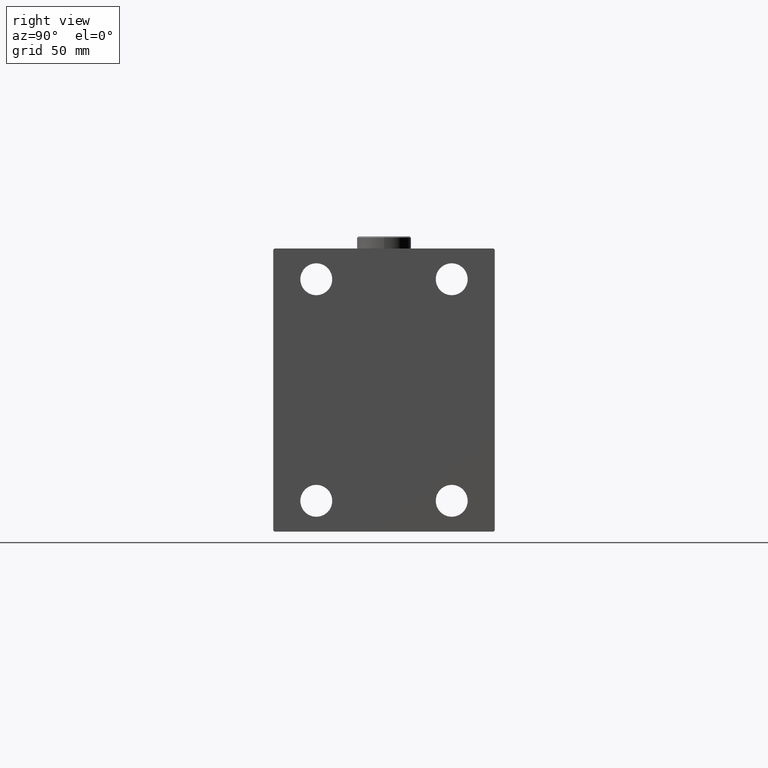
[diagram: clean part render]
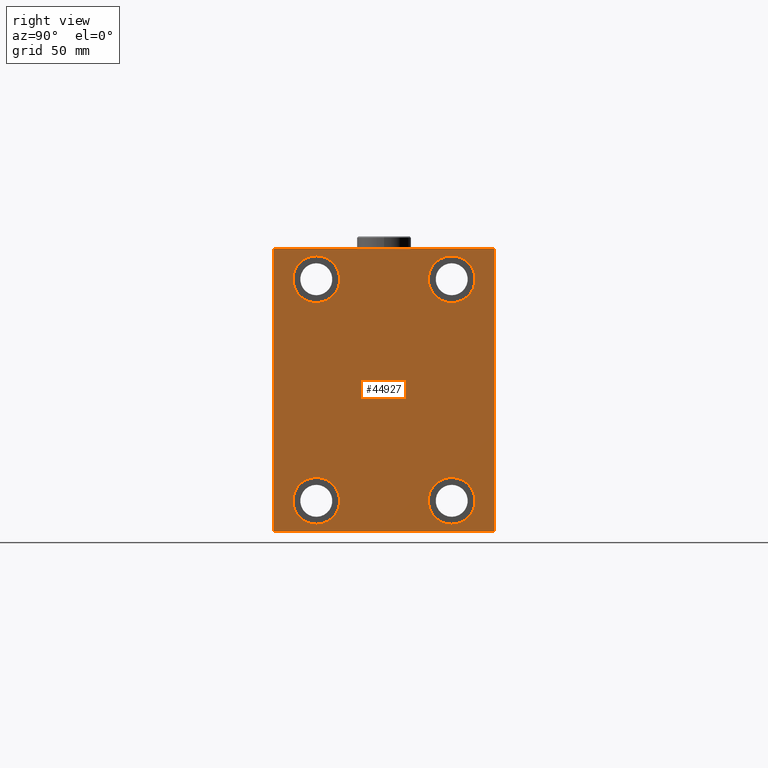
[diagram: same view with one face highlighted and labeled with its STEP entity id]
A machine part, right view. The second image highlights one B-rep face of the part: STEP entity #44927.
In plain terms, the highlighted planar face has unit normal (1, 0, 0).
Its self-contained STEP definition (entity closure, byte-faithful):
#467 = CARTESIAN_POINT ( 'NONE',  ( 198.0000000000000000, 44.50000000000002842, 57.50000000000000711 ) ) ;
#667 = FACE_BOUND ( 'NONE', #12752, .T. ) ;
#1434 = CARTESIAN_POINT ( 'NONE',  ( 198.0000000000000000, -44.50000000000002842, -57.50000000000000711 ) ) ;
#1632 = CARTESIAN_POINT ( 'NONE',  ( 198.0000000000000000, -27.49999999999998934, 45.00000000000000711 ) ) ;
#1986 = CARTESIAN_POINT ( 'NONE',  ( 198.0000000000000000, -27.49999999999998934, 35.50000000000000711 ) ) ;
#2152 = CARTESIAN_POINT ( 'NONE',  ( 198.0000000000000000, 27.49999999999998934, -54.49999999999998579 ) ) ;
#2874 = CARTESIAN_POINT ( 'NONE',  ( 198.0000000000000000, -27.49999999999998934, 54.50000000000000711 ) ) ;
#3671 = CARTESIAN_POINT ( 'NONE',  ( 198.0000000000000000, 45.00000000000001421, -57.50000000000000711 ) ) ;
#3679 = VERTEX_POINT ( 'NONE', #1986 ) ;
#4086 = CARTESIAN_POINT ( 'NONE',  ( 198.0000000000000000, -45.00000000000000000, 57.49999999999999289 ) ) ;
#4530 = EDGE_CURVE ( 'NONE', #25552, #6347, #25913, .T. ) ;
#4851 = DIRECTION ( 'NONE',  ( 0.000000000000000000, 0.000000000000000000, 1.000000000000000000 ) ) ;
#5118 = ORIENTED_EDGE ( 'NONE', *, *, #35734, .T. ) ;
#5307 = ORIENTED_EDGE ( 'NONE', *, *, #7631, .T. ) ;
#5344 = LINE ( 'NONE', #45516, #46970 ) ;
#5590 = ORIENTED_EDGE ( 'NONE', *, *, #8558, .T. ) ;
#5752 = ORIENTED_EDGE ( 'NONE', *, *, #25364, .T. ) ;
#5778 = VERTEX_POINT ( 'NONE', #21274 ) ;
#6121 = VERTEX_POINT ( 'NONE', #467 ) ;
#6310 = EDGE_CURVE ( 'NONE', #37689, #25552, #40841, .T. ) ;
#6347 = VERTEX_POINT ( 'NONE', #41563 ) ;
#6508 = CARTESIAN_POINT ( 'NONE',  ( 198.0000000000000000, -45.00000000000000000, 57.00000000000004974 ) ) ;
#7106 = CARTESIAN_POINT ( 'NONE',  ( 198.0000000000000000, 44.50000000000004263, -57.50000000000000711 ) ) ;
#7375 = DIRECTION ( 'NONE',  ( 0.000000000000000000, -1.000000000000000000, -1.541976423090495387E-16 ) ) ;
#7631 = EDGE_CURVE ( 'NONE', #41610, #3679, #43848, .T. ) ;
#7793 = FACE_OUTER_BOUND ( 'NONE', #20473, .T. ) ;
#8068 = AXIS2_PLACEMENT_3D ( 'NONE', #30339, #8973, #45338 ) ;
#8263 = FACE_BOUND ( 'NONE', #20044, .T. ) ;
#8304 = CARTESIAN_POINT ( 'NONE',  ( 198.0000000000000000, 27.50000000000001066, 54.50000000000000711 ) ) ;
#8524 = CARTESIAN_POINT ( 'NONE',  ( 198.0000000000000000, -50.99999999999877787, 51.00000000000160583 ) ) ;
#8558 = EDGE_CURVE ( 'NONE', #3679, #41610, #9306, .T. ) ;
#8812 = DIRECTION ( 'NONE',  ( -1.000000000000000000, -0.000000000000000000, -0.000000000000000000 ) ) ;
#8824 = CIRCLE ( 'NONE', #8068, 9.500000000000001776 ) ;
#8973 = DIRECTION ( 'NONE',  ( -1.000000000000000000, -0.000000000000000000, -0.000000000000000000 ) ) ;
#9306 = CIRCLE ( 'NONE', #17641, 9.500000000000001776 ) ;
#9838 = CARTESIAN_POINT ( 'NONE',  ( 198.0000000000000000, -27.49999999999998934, 45.00000000000000711 ) ) ;
#9968 = LINE ( 'NONE', #39193, #34873 ) ;
#10832 = ORIENTED_EDGE ( 'NONE', *, *, #4530, .T. ) ;
#12752 = EDGE_LOOP ( 'NONE', ( #32272, #5752 ) ) ;
#12875 = VERTEX_POINT ( 'NONE', #44682 ) ;
#13579 = EDGE_CURVE ( 'NONE', #24016, #22686, #42833, .T. ) ;
#13653 = DIRECTION ( 'NONE',  ( 0.000000000000000000, -1.206764157201257045E-16, 1.000000000000000000 ) ) ;
#14825 = CIRCLE ( 'NONE', #44444, 9.500000000000001776 ) ;
#14919 = DIRECTION ( 'NONE',  ( 0.000000000000000000, 0.000000000000000000, -1.000000000000000000 ) ) ;
#14928 = ORIENTED_EDGE ( 'NONE', *, *, #25061, .T. ) ;
#15374 = FACE_BOUND ( 'NONE', #42866, .T. ) ;
#15434 = LINE ( 'NONE', #40634, #19373 ) ;
#16112 = DIRECTION ( 'NONE',  ( -1.000000000000000000, -0.000000000000000000, -0.000000000000000000 ) ) ;
#16187 = EDGE_CURVE ( 'NONE', #46859, #5778, #21470, .T. ) ;
#16496 = DIRECTION ( 'NONE',  ( 0.000000000000000000, 0.000000000000000000, 1.000000000000000000 ) ) ;
#16529 = DIRECTION ( 'NONE',  ( -1.000000000000000000, -0.000000000000000000, -0.000000000000000000 ) ) ;
#16729 = DIRECTION ( 'NONE',  ( -1.000000000000000000, -0.000000000000000000, -0.000000000000000000 ) ) ;
#16736 = VERTEX_POINT ( 'NONE', #2152 ) ;
#16761 = CARTESIAN_POINT ( 'NONE',  ( 198.0000000000000000, 27.49999999999998934, -44.99999999999998579 ) ) ;
#17641 = AXIS2_PLACEMENT_3D ( 'NONE', #1632, #16112, #41794 ) ;
#17731 = ORIENTED_EDGE ( 'NONE', *, *, #28429, .T. ) ;
#18192 = ORIENTED_EDGE ( 'NONE', *, *, #42292, .T. ) ;
#19001 = DIRECTION ( 'NONE',  ( -0.000000000000000000, 0.7071067811865671127, -0.7071067811865279218 ) ) ;
#19093 = DIRECTION ( 'NONE',  ( -1.000000000000000000, -0.000000000000000000, -0.000000000000000000 ) ) ;
#19267 = CIRCLE ( 'NONE', #21560, 9.500000000000001776 ) ;
#19373 = VECTOR ( 'NONE', #19001, 1000.000000000000000 ) ;
#20044 = EDGE_LOOP ( 'NONE', ( #32574, #43830 ) ) ;
#20473 = EDGE_LOOP ( 'NONE', ( #14928, #40310, #10832, #36605, #17731, #24267, #42495, #5118 ) ) ;
#20577 = EDGE_CURVE ( 'NONE', #32222, #12875, #23112, .T. ) ;
#20916 = EDGE_CURVE ( 'NONE', #12875, #32222, #14825, .T. ) ;
#21274 = CARTESIAN_POINT ( 'NONE',  ( 198.0000000000000000, 45.00000000000000000, 57.00000000000003553 ) ) ;
#21470 = LINE ( 'NONE', #3671, #25394 ) ;
#21560 = AXIS2_PLACEMENT_3D ( 'NONE', #16761, #16529, #24123 ) ;
#21626 = AXIS2_PLACEMENT_3D ( 'NONE', #40806, #33909, #14919 ) ;
#22269 = CARTESIAN_POINT ( 'NONE',  ( 198.0000000000000000, 27.50000000000001066, 45.00000000000000711 ) ) ;
#22686 = VERTEX_POINT ( 'NONE', #8304 ) ;
#22995 = DIRECTION ( 'NONE',  ( 0.000000000000000000, -0.7071067811865671127, -0.7071067811865279218 ) ) ;
#23112 = CIRCLE ( 'NONE', #29200, 9.500000000000001776 ) ;
#23674 = VERTEX_POINT ( 'NONE', #7106 ) ;
#23983 = EDGE_CURVE ( 'NONE', #16736, #47007, #8824, .T. ) ;
#24016 = VERTEX_POINT ( 'NONE', #38919 ) ;
#24123 = DIRECTION ( 'NONE',  ( 0.000000000000000000, 0.000000000000000000, 1.000000000000000000 ) ) ;
#24267 = ORIENTED_EDGE ( 'NONE', *, *, #33310, .T. ) ;
#24445 = DIRECTION ( 'NONE',  ( -0.000000000000000000, -0.7071067811865671127, 0.7071067811865279218 ) ) ;
#25061 = EDGE_CURVE ( 'NONE', #6121, #37689, #37686, .T. ) ;
#25077 = CARTESIAN_POINT ( 'NONE',  ( 198.0000000000000000, 45.00000000000001421, -57.00000000000003553 ) ) ;
#25364 = EDGE_CURVE ( 'NONE', #22686, #24016, #37712, .T. ) ;
#25394 = VECTOR ( 'NONE', #13653, 1000.000000000000000 ) ;
#25552 = VERTEX_POINT ( 'NONE', #6508 ) ;
#25913 = LINE ( 'NONE', #4086, #42975 ) ;
#26902 = CARTESIAN_POINT ( 'NONE',  ( 198.0000000000000000, -27.50000000000000000, -44.99999999999998579 ) ) ;
#27412 = CARTESIAN_POINT ( 'NONE',  ( 198.0000000000000000, 27.49999999999998934, -35.49999999999998579 ) ) ;
#27859 = DIRECTION ( 'NONE',  ( 0.000000000000000000, 0.000000000000000000, 1.000000000000000000 ) ) ;
#28178 = EDGE_LOOP ( 'NONE', ( #5590, #5307 ) ) ;
#28429 = EDGE_CURVE ( 'NONE', #35661, #23674, #34662, .T. ) ;
#29200 = AXIS2_PLACEMENT_3D ( 'NONE', #26902, #31200, #27859 ) ;
#29860 = PLANE ( 'NONE',  #21626 ) ;
#30075 = CARTESIAN_POINT ( 'NONE',  ( 198.0000000000000000, 45.00000000000000000, 57.50000000000000711 ) ) ;
#30339 = CARTESIAN_POINT ( 'NONE',  ( 198.0000000000000000, 27.49999999999998934, -44.99999999999998579 ) ) ;
#31146 = DIRECTION ( 'NONE',  ( 0.000000000000000000, 0.000000000000000000, 1.000000000000000000 ) ) ;
#31200 = DIRECTION ( 'NONE',  ( -1.000000000000000000, -0.000000000000000000, -0.000000000000000000 ) ) ;
#31231 = DIRECTION ( 'NONE',  ( -0.000000000000000000, 0.7071067811865279218, 0.7071067811865671127 ) ) ;
#32137 = DIRECTION ( 'NONE',  ( 0.000000000000000000, 0.000000000000000000, -1.000000000000000000 ) ) ;
#32222 = VERTEX_POINT ( 'NONE', #45885 ) ;
#32272 = ORIENTED_EDGE ( 'NONE', *, *, #13579, .T. ) ;
#32574 = ORIENTED_EDGE ( 'NONE', *, *, #20916, .T. ) ;
#33310 = EDGE_CURVE ( 'NONE', #23674, #46859, #5344, .T. ) ;
#33448 = DIRECTION ( 'NONE',  ( 0.000000000000000000, 0.000000000000000000, 1.000000000000000000 ) ) ;
#33909 = DIRECTION ( 'NONE',  ( 1.000000000000000000, 0.000000000000000000, 0.000000000000000000 ) ) ;
#34662 = LINE ( 'NONE', #34901, #35525 ) ;
#34873 = VECTOR ( 'NONE', #24445, 1000.000000000000000 ) ;
#34901 = CARTESIAN_POINT ( 'NONE',  ( 198.0000000000000000, -45.00000000000000000, -57.50000000000000711 ) ) ;
#35525 = VECTOR ( 'NONE', #42738, 1000.000000000000000 ) ;
#35661 = VERTEX_POINT ( 'NONE', #1434 ) ;
#35734 = EDGE_CURVE ( 'NONE', #5778, #6121, #9968, .T. ) ;
#36185 = VECTOR ( 'NONE', #7375, 1000.000000000000000 ) ;
#36605 = ORIENTED_EDGE ( 'NONE', *, *, #45479, .T. ) ;
#36758 = FACE_BOUND ( 'NONE', #28178, .T. ) ;
#36966 = VECTOR ( 'NONE', #22995, 1000.000000000000000 ) ;
#37377 = CARTESIAN_POINT ( 'NONE',  ( 198.0000000000000000, 27.50000000000001066, 45.00000000000000711 ) ) ;
#37686 = LINE ( 'NONE', #30075, #36185 ) ;
#37689 = VERTEX_POINT ( 'NONE', #46593 ) ;
#37712 = CIRCLE ( 'NONE', #45342, 9.500000000000001776 ) ;
#38919 = CARTESIAN_POINT ( 'NONE',  ( 198.0000000000000000, 27.50000000000001066, 35.50000000000000711 ) ) ;
#39083 = ORIENTED_EDGE ( 'NONE', *, *, #23983, .T. ) ;
#39193 = CARTESIAN_POINT ( 'NONE',  ( 198.0000000000000000, 50.99999999999877787, 51.00000000000160583 ) ) ;
#39763 = AXIS2_PLACEMENT_3D ( 'NONE', #22269, #43936, #33448 ) ;
#40310 = ORIENTED_EDGE ( 'NONE', *, *, #6310, .T. ) ;
#40634 = CARTESIAN_POINT ( 'NONE',  ( 198.0000000000000000, -50.99999999999877787, -51.00000000000160583 ) ) ;
#40806 = CARTESIAN_POINT ( 'NONE',  ( 198.0000000000000000, 0.000000000000000000, 0.000000000000000000 ) ) ;
#40841 = LINE ( 'NONE', #8524, #36966 ) ;
#41358 = CARTESIAN_POINT ( 'NONE',  ( 198.0000000000000000, -27.50000000000000000, -44.99999999999998579 ) ) ;
#41563 = CARTESIAN_POINT ( 'NONE',  ( 198.0000000000000000, -45.00000000000000000, -57.00000000000006395 ) ) ;
#41610 = VERTEX_POINT ( 'NONE', #2874 ) ;
#41794 = DIRECTION ( 'NONE',  ( 0.000000000000000000, 0.000000000000000000, 1.000000000000000000 ) ) ;
#42292 = EDGE_CURVE ( 'NONE', #47007, #16736, #19267, .T. ) ;
#42495 = ORIENTED_EDGE ( 'NONE', *, *, #16187, .T. ) ;
#42738 = DIRECTION ( 'NONE',  ( 0.000000000000000000, 1.000000000000000000, 0.000000000000000000 ) ) ;
#42833 = CIRCLE ( 'NONE', #39763, 9.500000000000001776 ) ;
#42866 = EDGE_LOOP ( 'NONE', ( #39083, #18192 ) ) ;
#42975 = VECTOR ( 'NONE', #32137, 1000.000000000000000 ) ;
#43830 = ORIENTED_EDGE ( 'NONE', *, *, #20577, .T. ) ;
#43848 = CIRCLE ( 'NONE', #44587, 9.500000000000001776 ) ;
#43936 = DIRECTION ( 'NONE',  ( -1.000000000000000000, -0.000000000000000000, -0.000000000000000000 ) ) ;
#44444 = AXIS2_PLACEMENT_3D ( 'NONE', #41358, #8812, #31146 ) ;
#44587 = AXIS2_PLACEMENT_3D ( 'NONE', #9838, #16729, #16496 ) ;
#44682 = CARTESIAN_POINT ( 'NONE',  ( 198.0000000000000000, -27.50000000000000000, -54.49999999999998579 ) ) ;
#44927 = ADVANCED_FACE ( 'NONE', ( #15374, #36758, #667, #8263, #7793 ), #29860, .T. ) ;
#45338 = DIRECTION ( 'NONE',  ( 0.000000000000000000, 0.000000000000000000, 1.000000000000000000 ) ) ;
#45342 = AXIS2_PLACEMENT_3D ( 'NONE', #37377, #19093, #4851 ) ;
#45479 = EDGE_CURVE ( 'NONE', #6347, #35661, #15434, .T. ) ;
#45516 = CARTESIAN_POINT ( 'NONE',  ( 198.0000000000000000, 51.00000000000127187, -50.99999999999844391 ) ) ;
#45885 = CARTESIAN_POINT ( 'NONE',  ( 198.0000000000000000, -27.50000000000000000, -35.49999999999998579 ) ) ;
#46593 = CARTESIAN_POINT ( 'NONE',  ( 198.0000000000000000, -44.50000000000000000, 57.49999999999999289 ) ) ;
#46859 = VERTEX_POINT ( 'NONE', #25077 ) ;
#46970 = VECTOR ( 'NONE', #31231, 1000.000000000000000 ) ;
#47007 = VERTEX_POINT ( 'NONE', #27412 ) ;